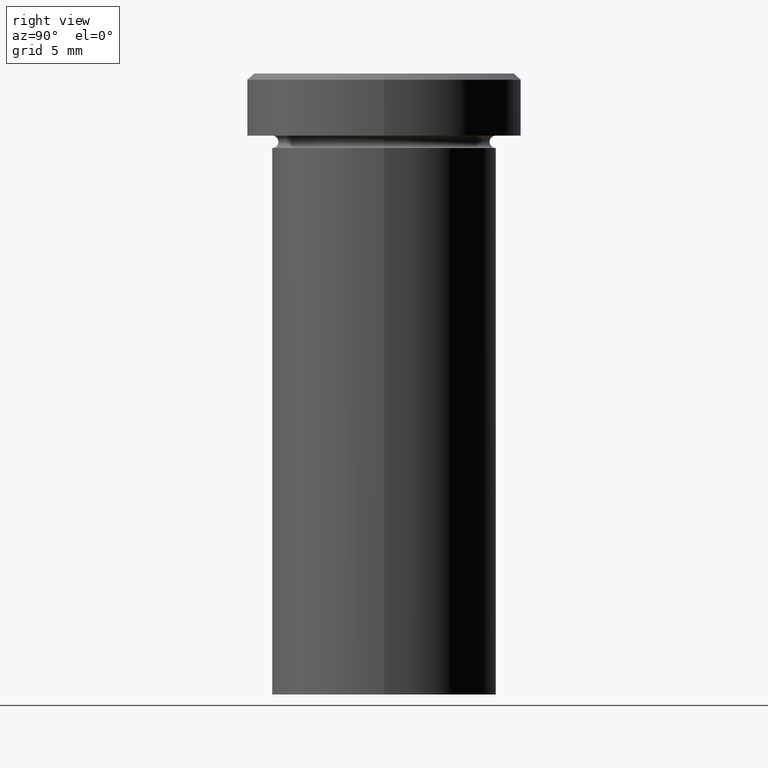
[diagram: clean part render]
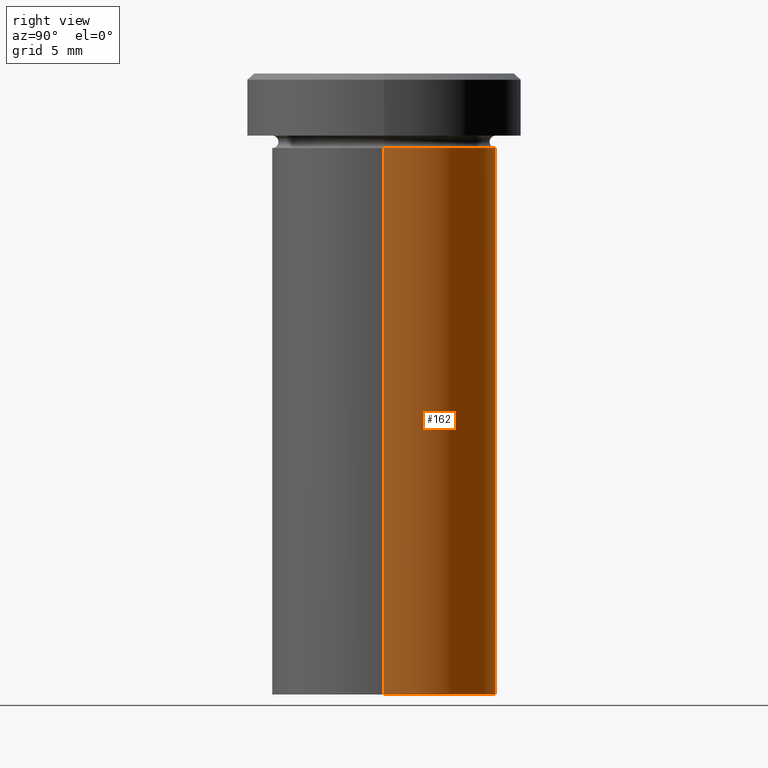
[diagram: same view with one face highlighted and labeled with its STEP entity id]
A machine part, right view. The second image highlights one B-rep face of the part: STEP entity #162.
In plain terms, the highlighted cylindrical surface (partial cylindrical patch) has radius 9 mm, axis along (-0, -0, 1).
Its self-contained STEP definition (entity closure, byte-faithful):
#5 = CARTESIAN_POINT ( 'NONE',  ( -9.000000000000000000, 1.102182119232617714E-15, 0.000000000000000000 ) ) ;
#10 = ORIENTED_EDGE ( 'NONE', *, *, #295, .F. ) ;
#26 = VECTOR ( 'NONE', #340, 1000.000000000000000 ) ;
#32 = CARTESIAN_POINT ( 'NONE',  ( 0.000000000000000000, 0.000000000000000000, -50.00000000000000000 ) ) ;
#36 = AXIS2_PLACEMENT_3D ( 'NONE', #32, #188, #302 ) ;
#52 = CARTESIAN_POINT ( 'NONE',  ( -9.000000000000000000, 1.102182119232617714E-15, -50.00000000000000000 ) ) ;
#68 = VECTOR ( 'NONE', #116, 1000.000000000000000 ) ;
#72 = VERTEX_POINT ( 'NONE', #52 ) ;
#84 = DIRECTION ( 'NONE',  ( -0.000000000000000000, -0.000000000000000000, 1.000000000000000000 ) ) ;
#95 = CARTESIAN_POINT ( 'NONE',  ( -9.000000000000000000, 1.102182119232617714E-15, -6.000000000000000000 ) ) ;
#100 = AXIS2_PLACEMENT_3D ( 'NONE', #274, #179, #151 ) ;
#107 = CIRCLE ( 'NONE', #36, 9.000000000000000000 ) ;
#116 = DIRECTION ( 'NONE',  ( -0.000000000000000000, -0.000000000000000000, 1.000000000000000000 ) ) ;
#121 = CYLINDRICAL_SURFACE ( 'NONE', #100, 9.000000000000000000 ) ;
#125 = LINE ( 'NONE', #5, #68 ) ;
#151 = DIRECTION ( 'NONE',  ( 1.000000000000000000, 0.000000000000000000, 0.000000000000000000 ) ) ;
#155 = EDGE_LOOP ( 'NONE', ( #382, #344, #313, #10 ) ) ;
#157 = EDGE_CURVE ( 'NONE', #388, #214, #273, .T. ) ;
#161 = CARTESIAN_POINT ( 'NONE',  ( 9.000000000000000000, 0.000000000000000000, -6.000000000000000000 ) ) ;
#162 = ADVANCED_FACE ( 'NONE', ( #201 ), #121, .T. ) ;
#179 = DIRECTION ( 'NONE',  ( -0.000000000000000000, -0.000000000000000000, 1.000000000000000000 ) ) ;
#187 = CARTESIAN_POINT ( 'NONE',  ( 0.000000000000000000, 0.000000000000000000, -6.000000000000000000 ) ) ;
#188 = DIRECTION ( 'NONE',  ( -0.000000000000000000, -0.000000000000000000, 1.000000000000000000 ) ) ;
#201 = FACE_OUTER_BOUND ( 'NONE', #155, .T. ) ;
#211 = CARTESIAN_POINT ( 'NONE',  ( 9.000000000000000000, 0.000000000000000000, 0.000000000000000000 ) ) ;
#214 = VERTEX_POINT ( 'NONE', #95 ) ;
#220 = AXIS2_PLACEMENT_3D ( 'NONE', #187, #84, #372 ) ;
#240 = CARTESIAN_POINT ( 'NONE',  ( 9.000000000000000000, 0.000000000000000000, -50.00000000000000000 ) ) ;
#256 = EDGE_CURVE ( 'NONE', #72, #214, #125, .T. ) ;
#260 = EDGE_CURVE ( 'NONE', #283, #72, #107, .T. ) ;
#273 = CIRCLE ( 'NONE', #220, 9.000000000000000000 ) ;
#274 = CARTESIAN_POINT ( 'NONE',  ( 0.000000000000000000, 0.000000000000000000, 0.000000000000000000 ) ) ;
#283 = VERTEX_POINT ( 'NONE', #240 ) ;
#295 = EDGE_CURVE ( 'NONE', #283, #388, #384, .T. ) ;
#302 = DIRECTION ( 'NONE',  ( 1.000000000000000000, 0.000000000000000000, 0.000000000000000000 ) ) ;
#313 = ORIENTED_EDGE ( 'NONE', *, *, #157, .F. ) ;
#340 = DIRECTION ( 'NONE',  ( -0.000000000000000000, -0.000000000000000000, 1.000000000000000000 ) ) ;
#344 = ORIENTED_EDGE ( 'NONE', *, *, #256, .T. ) ;
#372 = DIRECTION ( 'NONE',  ( 1.000000000000000000, 0.000000000000000000, 0.000000000000000000 ) ) ;
#382 = ORIENTED_EDGE ( 'NONE', *, *, #260, .T. ) ;
#384 = LINE ( 'NONE', #211, #26 ) ;
#388 = VERTEX_POINT ( 'NONE', #161 ) ;